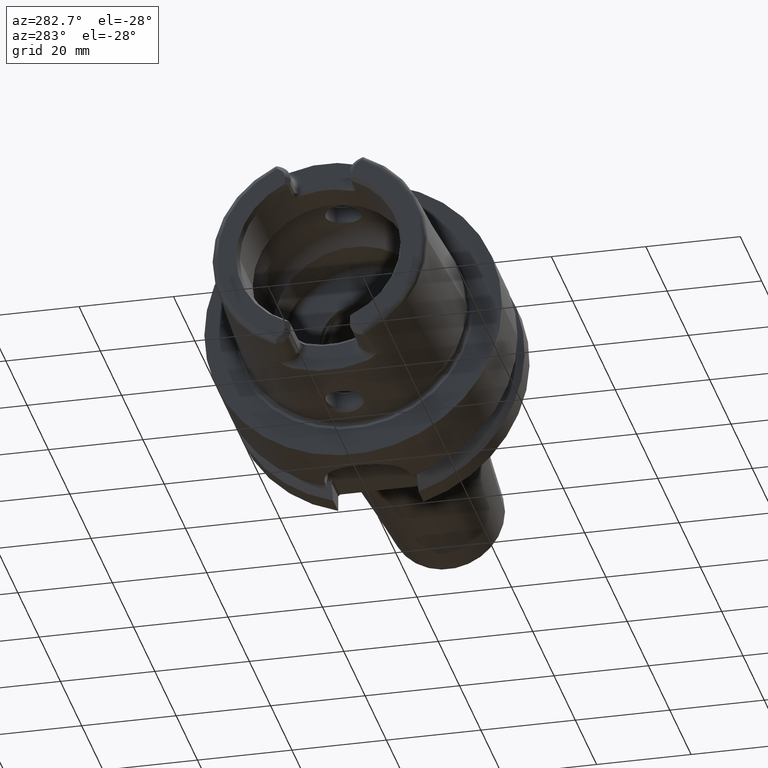
[diagram: clean part render]
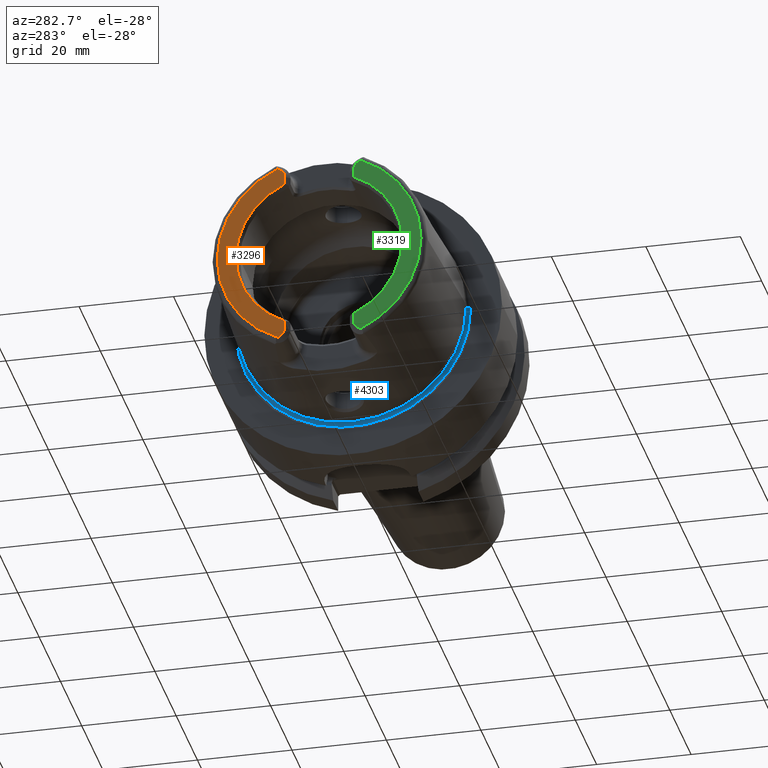
[diagram: same view with three faces highlighted in distinct colors, each labeled with its STEP entity id]
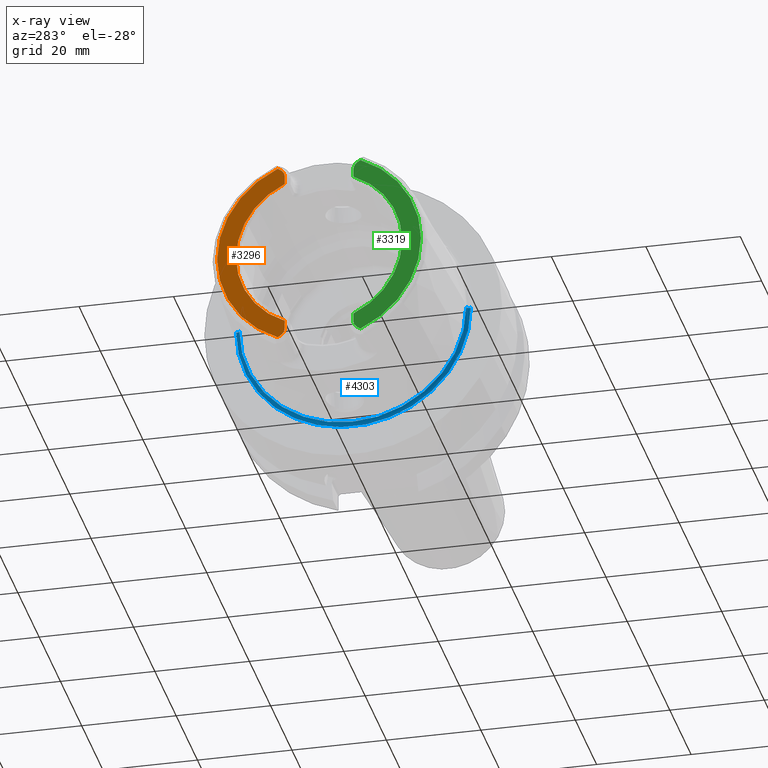
[diagram: x-ray of the same camera — body ghosted, the three highlighted faces saturated]
A machine part, auxiliary view with three faces highlighted in distinct colors.
The next image is the same camera in x-ray (body ghosted, the three faces saturated) — at least one of them is partly hidden behind the body in this view.
Their STEP definitions:

[orange] entity #3296 — the highlighted planar face has unit normal (1, 0, 0).
#215=CARTESIAN_POINT('',(-3.2E1,0.E0,0.E0));
#216=DIRECTION('',(-1.E0,0.E0,0.E0));
#217=DIRECTION('',(0.E0,4.056746540583E-1,9.140175463604E-1));
#218=AXIS2_PLACEMENT_3D('',#215,#216,#217);
#289=DIRECTION('',(0.E0,0.E0,1.E0));
#290=VECTOR('',#289,1.666552168805E0);
#291=CARTESIAN_POINT('',(-3.2E1,7.27E0,-1.767E1));
#292=LINE('',#291,#290);
#293=CARTESIAN_POINT('',(-3.2E1,9.27E0,-1.767E1));
#294=DIRECTION('',(1.E0,0.E0,0.E0));
#295=DIRECTION('',(0.E0,-1.E0,0.E0));
#296=AXIS2_PLACEMENT_3D('',#293,#294,#295);
#298=DIRECTION('',(0.E0,-8.373245684230E-1,5.467061067112E-1));
#299=VECTOR('',#298,6.882400885956E-1);
#300=CARTESIAN_POINT('',(-3.2E1,8.752868121732E0,-1.972091419616E1));
#301=LINE('',#300,#299);
#302=DIRECTION('',(0.E0,-8.373245684230E-1,-5.467061067112E-1));
#303=VECTOR('',#302,6.882400885957E-1);
#304=CARTESIAN_POINT('',(-3.2E1,8.752868121732E0,1.972091419616E1));
#305=LINE('',#304,#303);
#306=CARTESIAN_POINT('',(-3.2E1,9.27E0,1.767E1));
#307=DIRECTION('',(-1.E0,0.E0,0.E0));
#308=DIRECTION('',(0.E0,-1.E0,0.E0));
#309=AXIS2_PLACEMENT_3D('',#306,#307,#308);
#311=DIRECTION('',(0.E0,0.E0,1.E0));
#312=VECTOR('',#311,1.666552168805E0);
#313=CARTESIAN_POINT('',(-3.2E1,7.27E0,1.600344783120E1));
#314=LINE('',#313,#312);
#346=CARTESIAN_POINT('',(-3.2E1,0.E0,0.E0));
#347=DIRECTION('',(1.E0,0.E0,0.E0));
#348=DIRECTION('',(0.E0,4.136004510727E-1,-9.104584926686E-1));
#349=AXIS2_PLACEMENT_3D('',#346,#347,#348);
#2703=CARTESIAN_POINT('',(-3.2E1,7.27E0,1.600344783120E1));
#2704=CARTESIAN_POINT('',(-3.2E1,7.27E0,1.767E1));
#2705=VERTEX_POINT('',#2703);
#2706=VERTEX_POINT('',#2704);
#2707=CARTESIAN_POINT('',(-3.2E1,8.176587786578E0,1.934464913685E1));
#2708=VERTEX_POINT('',#2707);
#2709=CARTESIAN_POINT('',(-3.2E1,8.752868121732E0,1.972091419616E1));
#2710=VERTEX_POINT('',#2709);
#2799=CARTESIAN_POINT('',(-3.2E1,7.27E0,-1.767E1));
#2800=CARTESIAN_POINT('',(-3.2E1,7.27E0,-1.600344783120E1));
#2801=VERTEX_POINT('',#2799);
#2802=VERTEX_POINT('',#2800);
#2803=CARTESIAN_POINT('',(-3.2E1,8.176587786578E0,-1.934464913685E1));
#2804=VERTEX_POINT('',#2803);
#2805=CARTESIAN_POINT('',(-3.2E1,8.752868121732E0,-1.972091419616E1));
#2806=VERTEX_POINT('',#2805);
#3275=CARTESIAN_POINT('',(-3.2E1,0.E0,0.E0));
#3276=DIRECTION('',(1.E0,0.E0,0.E0));
#3277=DIRECTION('',(0.E0,-1.E0,0.E0));
#3278=AXIS2_PLACEMENT_3D('',#3275,#3276,#3277);
#3279=PLANE('',#3278);
#3281=ORIENTED_EDGE('',*,*,#3280,.F.);
#3283=ORIENTED_EDGE('',*,*,#3282,.T.);
#3284=ORIENTED_EDGE('',*,*,#3265,.F.);
#3285=ORIENTED_EDGE('',*,*,#3232,.F.);
#3287=ORIENTED_EDGE('',*,*,#3286,.T.);
#3289=ORIENTED_EDGE('',*,*,#3288,.F.);
#3291=ORIENTED_EDGE('',*,*,#3290,.F.);
#3293=ORIENTED_EDGE('',*,*,#3292,.F.);
#3294=EDGE_LOOP('',(#3281,#3283,#3284,#3285,#3287,#3289,#3291,#3293));
#3295=FACE_OUTER_BOUND('',#3294,.F.);
#3296=ADVANCED_FACE('',(#3295),#3279,.F.);
#219=CIRCLE('',#218,2.157607835286E1);
#297=CIRCLE('',#296,2.E0);
#310=CIRCLE('',#309,2.E0);
#350=CIRCLE('',#349,1.757735026919E1);
#3232=EDGE_CURVE('',#2710,#2806,#219,.T.);
#3265=EDGE_CURVE('',#2806,#2804,#301,.T.);
#3280=EDGE_CURVE('',#2801,#2802,#292,.T.);
#3282=EDGE_CURVE('',#2801,#2804,#297,.T.);
#3286=EDGE_CURVE('',#2710,#2708,#305,.T.);
#3288=EDGE_CURVE('',#2706,#2708,#310,.T.);
#3290=EDGE_CURVE('',#2705,#2706,#314,.T.);
#3292=EDGE_CURVE('',#2802,#2705,#350,.T.);

[blue] entity #4303 — the highlighted toroidal blend (fillet) surface has major radius 24.6204 mm and minor (blend) radius 0.6 mm.
#1030=CARTESIAN_POINT('',(-3.021696305237E-1,0.E0,0.E0));
#1031=DIRECTION('',(-1.E0,0.E0,0.E0));
#1032=DIRECTION('',(0.E0,1.E0,0.E0));
#1033=AXIS2_PLACEMENT_3D('',#1030,#1031,#1032);
#1045=CARTESIAN_POINT('',(-3.021696305237E-1,2.462042414966E1,0.E0));
#1046=DIRECTION('',(0.E0,0.E0,-1.E0));
#1047=DIRECTION('',(9.304175679820E-1,3.665012267243E-1,0.E0));
#1048=AXIS2_PLACEMENT_3D('',#1045,#1046,#1047);
#1050=CARTESIAN_POINT('',(-3.021696305237E-1,-2.462042414966E1,0.E0));
#1051=DIRECTION('',(0.E0,0.E0,1.E0));
#1052=DIRECTION('',(9.304175679820E-1,-3.665012267243E-1,0.E0));
#1053=AXIS2_PLACEMENT_3D('',#1050,#1051,#1052);
#1055=CARTESIAN_POINT('',(2.560809102655E-1,0.E0,0.E0));
#1056=DIRECTION('',(-1.E0,0.E0,0.E0));
#1057=DIRECTION('',(0.E0,1.E0,0.E0));
#1058=AXIS2_PLACEMENT_3D('',#1055,#1056,#1057);
#2616=CARTESIAN_POINT('',(2.560809102655E-1,-2.484032488569E1,0.E0));
#2617=CARTESIAN_POINT('',(-3.021696305237E-1,-2.402042414966E1,0.E0));
#2618=VERTEX_POINT('',#2616);
#2619=VERTEX_POINT('',#2617);
#2624=CARTESIAN_POINT('',(2.560809102655E-1,2.484032488569E1,0.E0));
#2625=CARTESIAN_POINT('',(-3.021696305237E-1,2.402042414966E1,0.E0));
#2626=VERTEX_POINT('',#2624);
#2627=VERTEX_POINT('',#2625);
#4291=CARTESIAN_POINT('',(-3.021696305237E-1,0.E0,0.E0));
#4292=DIRECTION('',(-1.E0,0.E0,0.E0));
#4293=DIRECTION('',(0.E0,-1.E0,0.E0));
#4294=AXIS2_PLACEMENT_3D('',#4291,#4292,#4293);
#4295=TOROIDAL_SURFACE('',#4294,2.462042414966E1,6.E-1);
#4296=ORIENTED_EDGE('',*,*,#4284,.T.);
#4297=ORIENTED_EDGE('',*,*,#4258,.T.);
#4298=ORIENTED_EDGE('',*,*,#4281,.F.);
#4300=ORIENTED_EDGE('',*,*,#4299,.F.);
#4301=EDGE_LOOP('',(#4296,#4297,#4298,#4300));
#4302=FACE_OUTER_BOUND('',#4301,.F.);
#4303=ADVANCED_FACE('',(#4302),#4295,.F.);
#1034=CIRCLE('',#1033,2.402042414966E1);
#1049=CIRCLE('',#1048,6.E-1);
#1054=CIRCLE('',#1053,6.E-1);
#1059=CIRCLE('',#1058,2.484032488569E1);
#4258=EDGE_CURVE('',#2627,#2619,#1034,.T.);
#4281=EDGE_CURVE('',#2618,#2619,#1054,.T.);
#4284=EDGE_CURVE('',#2626,#2627,#1049,.T.);
#4299=EDGE_CURVE('',#2626,#2618,#1059,.T.);

[green] entity #3319 — the highlighted planar face has unit normal (1, 0, 0).
#231=CARTESIAN_POINT('',(-3.2E1,0.E0,0.E0));
#232=DIRECTION('',(-1.E0,0.E0,0.E0));
#233=DIRECTION('',(0.E0,-4.056746540583E-1,-9.140175463604E-1));
#234=AXIS2_PLACEMENT_3D('',#231,#232,#233);
#315=DIRECTION('',(0.E0,0.E0,-1.E0));
#316=VECTOR('',#315,1.666552168805E0);
#317=CARTESIAN_POINT('',(-3.2E1,-7.27E0,-1.600344783120E1));
#318=LINE('',#317,#316);
#319=DIRECTION('',(0.E0,0.E0,1.E0));
#320=VECTOR('',#319,1.666552168805E0);
#321=CARTESIAN_POINT('',(-3.2E1,-7.27E0,1.600344783120E1));
#322=LINE('',#321,#320);
#323=CARTESIAN_POINT('',(-3.2E1,-9.27E0,1.767E1));
#324=DIRECTION('',(1.E0,0.E0,0.E0));
#325=DIRECTION('',(0.E0,1.E0,1.065814103640E-14));
#326=AXIS2_PLACEMENT_3D('',#323,#324,#325);
#328=DIRECTION('',(0.E0,8.373245684230E-1,-5.467061067112E-1));
#329=VECTOR('',#328,6.882400885957E-1);
#330=CARTESIAN_POINT('',(-3.2E1,-8.752868121732E0,1.972091419616E1));
#331=LINE('',#330,#329);
#332=DIRECTION('',(0.E0,8.373245684230E-1,5.467061067112E-1));
#333=VECTOR('',#332,6.882400885957E-1);
#334=CARTESIAN_POINT('',(-3.2E1,-8.752868121732E0,-1.972091419616E1));
#335=LINE('',#334,#333);
#336=CARTESIAN_POINT('',(-3.2E1,-9.27E0,-1.767E1));
#337=DIRECTION('',(-1.E0,0.E0,0.E0));
#338=DIRECTION('',(0.E0,1.E0,0.E0));
#339=AXIS2_PLACEMENT_3D('',#336,#337,#338);
#410=CARTESIAN_POINT('',(-3.2E1,0.E0,0.E0));
#411=DIRECTION('',(1.E0,0.E0,0.E0));
#412=DIRECTION('',(0.E0,-4.136004510727E-1,9.104584926686E-1));
#413=AXIS2_PLACEMENT_3D('',#410,#411,#412);
#2719=CARTESIAN_POINT('',(-3.2E1,-7.27E0,1.600344783120E1));
#2720=CARTESIAN_POINT('',(-3.2E1,-7.27E0,1.767E1));
#2721=VERTEX_POINT('',#2719);
#2722=VERTEX_POINT('',#2720);
#2723=CARTESIAN_POINT('',(-3.2E1,-8.176587786578E0,1.934464913685E1));
#2724=VERTEX_POINT('',#2723);
#2725=CARTESIAN_POINT('',(-3.2E1,-8.752868121732E0,1.972091419616E1));
#2726=VERTEX_POINT('',#2725);
#2816=CARTESIAN_POINT('',(-3.2E1,-7.27E0,-1.600344783120E1));
#2817=CARTESIAN_POINT('',(-3.2E1,-7.27E0,-1.767E1));
#2818=VERTEX_POINT('',#2816);
#2819=VERTEX_POINT('',#2817);
#2820=CARTESIAN_POINT('',(-3.2E1,-8.176587786578E0,-1.934464913685E1));
#2821=VERTEX_POINT('',#2820);
#2822=CARTESIAN_POINT('',(-3.2E1,-8.752868121732E0,-1.972091419616E1));
#2823=VERTEX_POINT('',#2822);
#3297=CARTESIAN_POINT('',(-3.2E1,0.E0,0.E0));
#3298=DIRECTION('',(1.E0,0.E0,0.E0));
#3299=DIRECTION('',(0.E0,-1.E0,0.E0));
#3300=AXIS2_PLACEMENT_3D('',#3297,#3298,#3299);
#3301=PLANE('',#3300);
#3303=ORIENTED_EDGE('',*,*,#3302,.F.);
#3305=ORIENTED_EDGE('',*,*,#3304,.F.);
#3307=ORIENTED_EDGE('',*,*,#3306,.T.);
#3309=ORIENTED_EDGE('',*,*,#3308,.T.);
#3311=ORIENTED_EDGE('',*,*,#3310,.F.);
#3312=ORIENTED_EDGE('',*,*,#3244,.F.);
#3314=ORIENTED_EDGE('',*,*,#3313,.T.);
#3316=ORIENTED_EDGE('',*,*,#3315,.F.);
#3317=EDGE_LOOP('',(#3303,#3305,#3307,#3309,#3311,#3312,#3314,#3316));
#3318=FACE_OUTER_BOUND('',#3317,.F.);
#3319=ADVANCED_FACE('',(#3318),#3301,.F.);
#235=CIRCLE('',#234,2.157607835286E1);
#327=CIRCLE('',#326,2.E0);
#340=CIRCLE('',#339,2.E0);
#414=CIRCLE('',#413,1.757735026919E1);
#3244=EDGE_CURVE('',#2823,#2726,#235,.T.);
#3302=EDGE_CURVE('',#2818,#2819,#318,.T.);
#3304=EDGE_CURVE('',#2721,#2818,#414,.T.);
#3306=EDGE_CURVE('',#2721,#2722,#322,.T.);
#3308=EDGE_CURVE('',#2722,#2724,#327,.T.);
#3310=EDGE_CURVE('',#2726,#2724,#331,.T.);
#3313=EDGE_CURVE('',#2823,#2821,#335,.T.);
#3315=EDGE_CURVE('',#2819,#2821,#340,.T.);